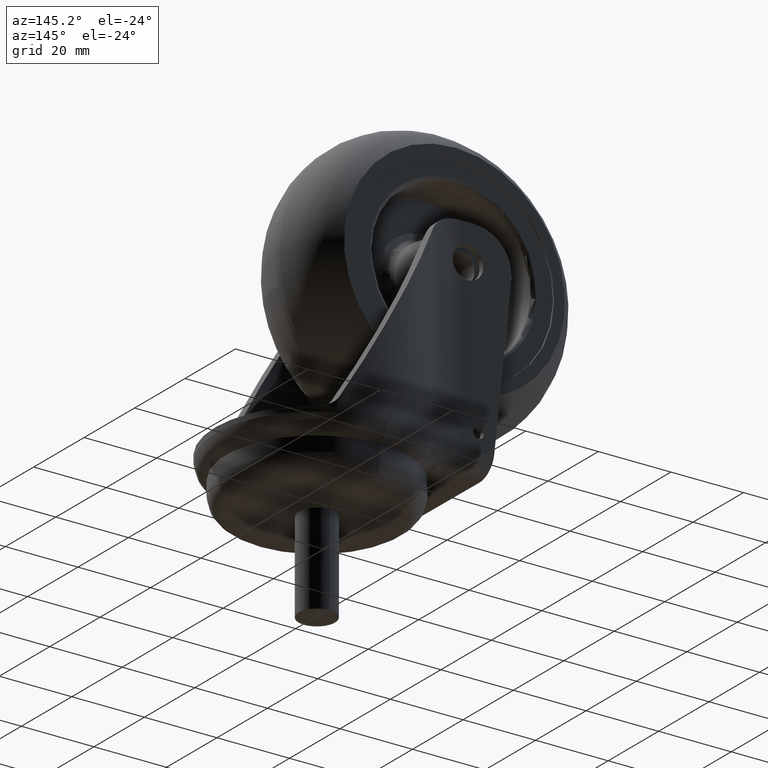
[diagram: clean part render]
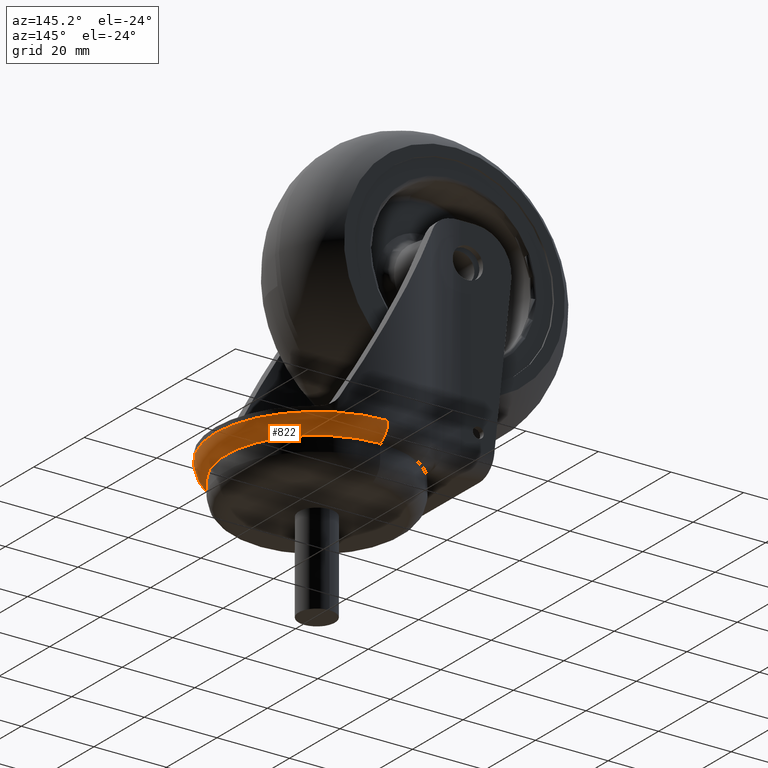
[diagram: same view with one face highlighted and labeled with its STEP entity id]
A machine part, auxiliary view. The second image highlights one B-rep face of the part: STEP entity #822.
In plain terms, the highlighted face is a freeform B-spline surface patch.
Its self-contained STEP definition (entity closure, byte-faithful):
#792 = EDGE_CURVE ( 'NONE', #806, #1269, #3294, .T. ) ;
#806 = VERTEX_POINT ( 'NONE', #3319 ) ;
#808 = EDGE_CURVE ( 'NONE', #2737, #806, #3374, .T. ) ;
#821 = EDGE_CURVE ( 'NONE', #1544, #2525, #3387, .T. ) ;
#822 = ADVANCED_FACE ( 'NONE', ( #3388 ), #3382, .T. ) ;
#824 = EDGE_LOOP ( 'NONE', ( #825, #879, #880, #881, #882 ) ) ;
#825 = ORIENTED_EDGE ( 'NONE', *, *, #1539, .F. ) ;
#879 = ORIENTED_EDGE ( 'NONE', *, *, #821, .T. ) ;
#880 = ORIENTED_EDGE ( 'NONE', *, *, #2776, .T. ) ;
#881 = ORIENTED_EDGE ( 'NONE', *, *, #808, .T. ) ;
#882 = ORIENTED_EDGE ( 'NONE', *, *, #792, .T. ) ;
#1269 = VERTEX_POINT ( 'NONE', #3565 ) ;
#1539 = EDGE_CURVE ( 'NONE', #1544, #1269, #3559, .T. ) ;
#1544 = VERTEX_POINT ( 'NONE', #3550 ) ;
#2525 = VERTEX_POINT ( 'NONE', #3588 ) ;
#2737 = VERTEX_POINT ( 'NONE', #3581 ) ;
#2776 = EDGE_CURVE ( 'NONE', #2525, #2737, #3381, .T. ) ;
#3290 = CARTESIAN_POINT ( 'NONE',  ( 25.00000000000003600, 40.00000000000007100, 0.0000000000000000000 ) ) ;
#3291 = CARTESIAN_POINT ( 'NONE',  ( 26.87779991200005700, 40.00000000000014900, 0.8195390700000013700 ) ) ;
#3292 = CARTESIAN_POINT ( 'NONE',  ( 28.00000000000008500, 40.00000000000000700, 2.533728019999995900 ) ) ;
#3293 = CARTESIAN_POINT ( 'NONE',  ( 27.99999999997497500, 39.99999999712855500, 4.582575695000000100 ) ) ;
#3294 =( BOUNDED_CURVE ( )  B_SPLINE_CURVE ( 3, ( #3293, #3292, #3291, #3290 ),
 .UNSPECIFIED., .F., .F. ) 
 B_SPLINE_CURVE_WITH_KNOTS ( ( 4, 4 ),
 ( 0.0000000000000000000, 1.000000000000000000 ),
 .UNSPECIFIED. ) 
 CURVE ( )  GEOMETRIC_REPRESENTATION_ITEM ( )  RATIONAL_B_SPLINE_CURVE ( ( 1.000000000000000000, 0.8911066843560500100, 0.8911066843560500100, 1.000000000000000000 ) ) 
 REPRESENTATION_ITEM ( '' )  );
#3318 = CARTESIAN_POINT ( 'NONE',  ( 0.0000000000000000000, 40.00000000000007100, 4.582575695000070200 ) ) ;
#3319 = CARTESIAN_POINT ( 'NONE',  ( 27.99999999997497500, 39.99999999712855500, 4.582575695000000100 ) ) ;
#3371 = DIRECTION ( 'NONE',  ( -1.000000000000000000, 0.0000000000000000000, 0.0000000000000000000 ) ) ;
#3372 = DIRECTION ( 'NONE',  ( -2.168404344970999200E-019, -4.336808689941998500E-019, -1.000000000000000000 ) ) ;
#3373 = AXIS2_PLACEMENT_3D ( 'NONE', #3318, #3372, #3371 ) ;
#3374 = CIRCLE ( 'NONE', #3373, 28.00000000000006400 ) ;
#3377 = DIRECTION ( 'NONE',  ( -1.000000000000000000, 0.0000000000000000000, 0.0000000000000000000 ) ) ;
#3378 = DIRECTION ( 'NONE',  ( -2.168404344970999200E-019, -4.336808689941998500E-019, -1.000000000000000000 ) ) ;
#3379 = CARTESIAN_POINT ( 'NONE',  ( 0.0000000000000000000, 40.00000000000007100, 4.582575695000070200 ) ) ;
#3380 = AXIS2_PLACEMENT_3D ( 'NONE', #3379, #3378, #3377 ) ;
#3381 = CIRCLE ( 'NONE', #3380, 28.00000000000006400 ) ;
#3382 =( BOUNDED_SURFACE ( )  B_SPLINE_SURFACE ( 3, 3, ( 
 ( #3412, #3411, #3410, #3409 ),
 ( #3408, #3407, #3406, #3405 ),
 ( #3404, #3403, #3402, #3401 ),
 ( #3400, #3399, #3398, #3397 ) ),
 .UNSPECIFIED., .F., .F., .T. ) 
 B_SPLINE_SURFACE_WITH_KNOTS ( ( 4, 4 ),
 ( 4, 4 ),
 ( 0.0000000000000000000, 1.000000000000000000 ),
 ( 0.0000000000000000000, 1.000000000000000000 ),
 .UNSPECIFIED. ) 
 GEOMETRIC_REPRESENTATION_ITEM ( )  RATIONAL_B_SPLINE_SURFACE ( (
 ( 1.000000000000000000, 0.3333333333333330400, 0.3333333333333330400, 1.000000000000000000),
 ( 0.8911066843560500100, 0.2970355614520170400, 0.2970355614520170400, 0.8911066843560500100),
 ( 0.8911066843560500100, 0.2970355614520170400, 0.2970355614520170400, 0.8911066843560500100),
 ( 1.000000000000000000, 0.3333333333333330400, 0.3333333333333330400, 1.000000000000000000) ) ) 
 REPRESENTATION_ITEM ( '' )  SURFACE ( )  );
#3383 = CARTESIAN_POINT ( 'NONE',  ( -27.99999999997500700, 40.00000000000013500, 4.582575695000000100 ) ) ;
#3384 = CARTESIAN_POINT ( 'NONE',  ( -28.00000000000015600, 40.00000000000001400, 2.533728020000003900 ) ) ;
#3385 = CARTESIAN_POINT ( 'NONE',  ( -26.87779991200008900, 40.00000000000007800, 0.8195390699999236500 ) ) ;
#3386 = CARTESIAN_POINT ( 'NONE',  ( -25.00000000000013100, 40.00000000000000700, 6.938893903907228400E-014 ) ) ;
#3387 =( BOUNDED_CURVE ( )  B_SPLINE_CURVE ( 3, ( #3386, #3385, #3384, #3383 ),
 .UNSPECIFIED., .F., .T. ) 
 B_SPLINE_CURVE_WITH_KNOTS ( ( 4, 4 ),
 ( 0.0000000000000000000, 1.000000000000000000 ),
 .UNSPECIFIED. ) 
 CURVE ( )  GEOMETRIC_REPRESENTATION_ITEM ( )  RATIONAL_B_SPLINE_CURVE ( ( 1.000000000000000000, 0.8911066843560500100, 0.8911066843560500100, 1.000000000000000000 ) ) 
 REPRESENTATION_ITEM ( '' )  );
#3388 = FACE_OUTER_BOUND ( 'NONE', #824, .T. ) ;
#3397 = CARTESIAN_POINT ( 'NONE',  ( 28.00000000000003600, 40.00000000000007100, 4.582575695000000100 ) ) ;
#3398 = CARTESIAN_POINT ( 'NONE',  ( 28.00000000000010700, 96.00000000000000000, 4.582575695000051600 ) ) ;
#3399 = CARTESIAN_POINT ( 'NONE',  ( -28.00000000000010700, 95.99999999999980100, 4.582575695000051600 ) ) ;
#3400 = CARTESIAN_POINT ( 'NONE',  ( -28.00000000000007100, 40.00000000000013500, 4.582575695000000100 ) ) ;
#3401 = CARTESIAN_POINT ( 'NONE',  ( 28.00000000000008200, 40.00000000000000700, 2.533728019999995900 ) ) ;
#3402 = CARTESIAN_POINT ( 'NONE',  ( 28.00000000000006000, 96.00000000000000000, 2.533728020000058500 ) ) ;
#3403 = CARTESIAN_POINT ( 'NONE',  ( -28.00000000000012100, 96.00000000000000000, 2.533728019999999900 ) ) ;
#3404 = CARTESIAN_POINT ( 'NONE',  ( -28.00000000000015600, 40.00000000000001400, 2.533728020000003900 ) ) ;
#3405 = CARTESIAN_POINT ( 'NONE',  ( 26.87779991200005700, 40.00000000000014900, 0.8195390700000012600 ) ) ;
#3406 = CARTESIAN_POINT ( 'NONE',  ( 26.87779991200005700, 93.75559982299999700, 0.8195390699999982600 ) ) ;
#3407 = CARTESIAN_POINT ( 'NONE',  ( -26.87779991200005700, 93.75559982299999700, 0.8195390700000567700 ) ) ;
#3408 = CARTESIAN_POINT ( 'NONE',  ( -26.87779991200009300, 40.00000000000007800, 0.8195390699999235400 ) ) ;
#3409 = CARTESIAN_POINT ( 'NONE',  ( 25.00000000000003600, 40.00000000000007100, 0.0000000000000000000 ) ) ;
#3410 = CARTESIAN_POINT ( 'NONE',  ( 25.00000000000005000, 90.00000000000000000, 0.0000000000000000000 ) ) ;
#3411 = CARTESIAN_POINT ( 'NONE',  ( -25.00000000000000700, 89.99999999999978700, 0.0000000000000000000 ) ) ;
#3412 = CARTESIAN_POINT ( 'NONE',  ( -25.00000000000013100, 40.00000000000000700, 6.938893903907228400E-014 ) ) ;
#3550 = CARTESIAN_POINT ( 'NONE',  ( -25.00000000000013100, 40.00000000000000700, 6.938893903907228400E-014 ) ) ;
#3555 = DIRECTION ( 'NONE',  ( -1.000000000000000000, 0.0000000000000000000, 6.505213034913013100E-019 ) ) ;
#3556 = DIRECTION ( 'NONE',  ( -2.168404344970999200E-019, -4.336808689941998500E-019, -1.000000000000000000 ) ) ;
#3557 = CARTESIAN_POINT ( 'NONE',  ( 0.0000000000000000000, 40.00000000000007100, 0.0000000000000000000 ) ) ;
#3558 = AXIS2_PLACEMENT_3D ( 'NONE', #3557, #3556, #3555 ) ;
#3559 = CIRCLE ( 'NONE', #3558, 25.00000000000005700 ) ;
#3565 = CARTESIAN_POINT ( 'NONE',  ( 25.00000000000003600, 40.00000000000007100, 0.0000000000000000000 ) ) ;
#3581 = CARTESIAN_POINT ( 'NONE',  ( -3.464080436798959400E-014, 67.99999999999997200, 4.582575695000070200 ) ) ;
#3588 = CARTESIAN_POINT ( 'NONE',  ( -27.99999999997500700, 40.00000000000013500, 4.582575695000000100 ) ) ;